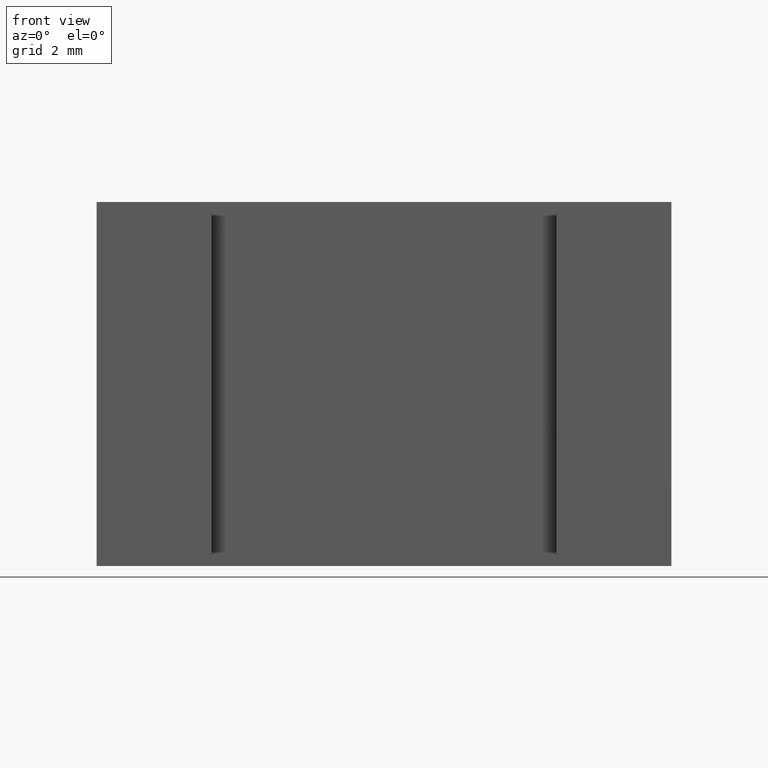
[diagram: clean part render]
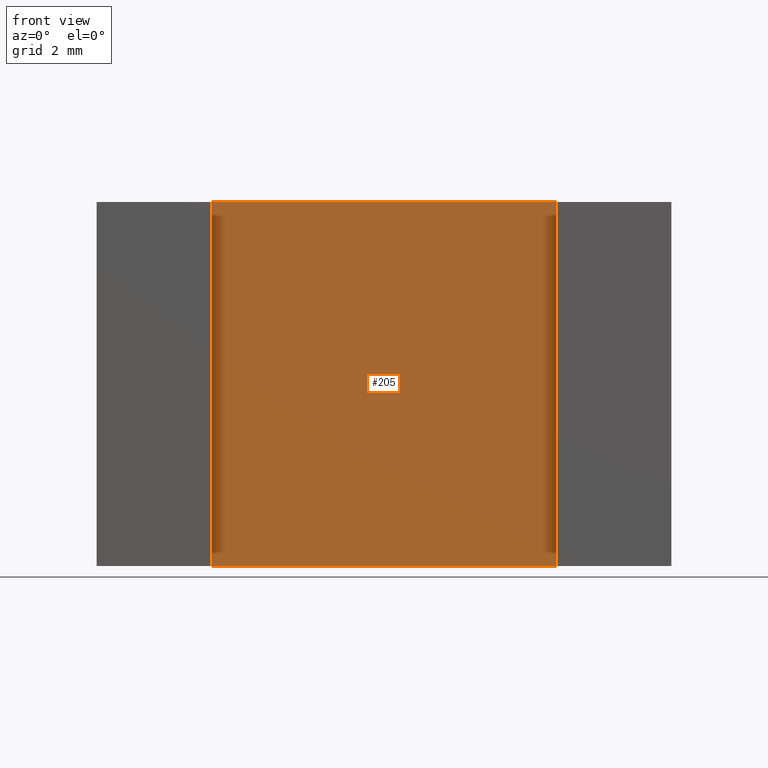
[diagram: same view with one face highlighted and labeled with its STEP entity id]
A machine part, front view. The second image highlights one B-rep face of the part: STEP entity #205.
In plain terms, the highlighted planar face has unit normal (-0, -1, 0).
Its self-contained STEP definition (entity closure, byte-faithful):
#16=FACE_OUTER_BOUND('',#27,.T.);
#27=EDGE_LOOP('',(#143,#144,#145,#146));
#41=LINE('',#313,#68);
#43=LINE('',#317,#70);
#44=LINE('',#319,#71);
#45=LINE('',#320,#72);
#68=VECTOR('',#259,10.);
#70=VECTOR('',#263,10.);
#71=VECTOR('',#264,10.);
#72=VECTOR('',#265,10.);
#94=VERTEX_POINT('',#310);
#95=VERTEX_POINT('',#312);
#96=VERTEX_POINT('',#316);
#97=VERTEX_POINT('',#318);
#113=EDGE_CURVE('',#95,#94,#41,.T.);
#115=EDGE_CURVE('',#94,#96,#43,.T.);
#116=EDGE_CURVE('',#97,#96,#44,.T.);
#117=EDGE_CURVE('',#97,#95,#45,.T.);
#143=ORIENTED_EDGE('',*,*,#115,.T.);
#144=ORIENTED_EDGE('',*,*,#116,.F.);
#145=ORIENTED_EDGE('',*,*,#117,.T.);
#146=ORIENTED_EDGE('',*,*,#113,.T.);
#191=PLANE('',#239);
#205=ADVANCED_FACE('',(#16),#191,.T.);
#239=AXIS2_PLACEMENT_3D('',#315,#261,#262);
#259=DIRECTION('',(0.,0.,1.));
#261=DIRECTION('center_axis',(-1.2335811384724E-16,-1.,0.));
#262=DIRECTION('ref_axis',(0.,0.,-1.));
#263=DIRECTION('',(-1.,1.2335811384724E-16,0.));
#264=DIRECTION('',(0.,0.,1.));
#265=DIRECTION('',(1.,-1.2335811384724E-16,0.));
#310=CARTESIAN_POINT('',(-3.,1.,9.5));
#312=CARTESIAN_POINT('',(-3.,1.,0.));
#313=CARTESIAN_POINT('',(-3.,1.,0.));
#315=CARTESIAN_POINT('Origin',(-3.,1.,0.));
#316=CARTESIAN_POINT('',(-12.,1.,9.5));
#317=CARTESIAN_POINT('',(-12.,1.,9.5));
#318=CARTESIAN_POINT('',(-12.,1.,0.));
#319=CARTESIAN_POINT('',(-12.,1.,0.));
#320=CARTESIAN_POINT('',(-12.,1.,0.));